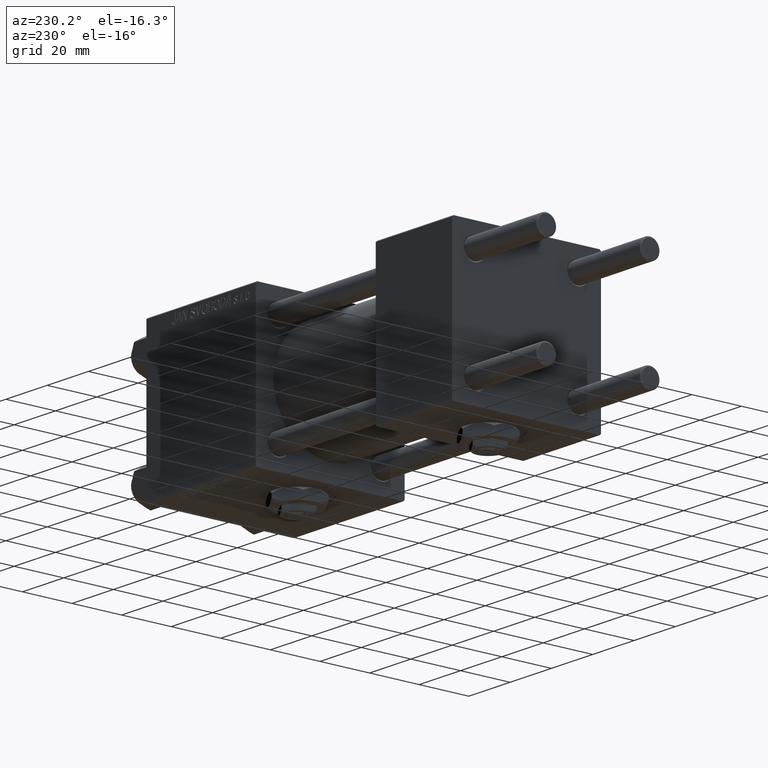
[diagram: clean part render]
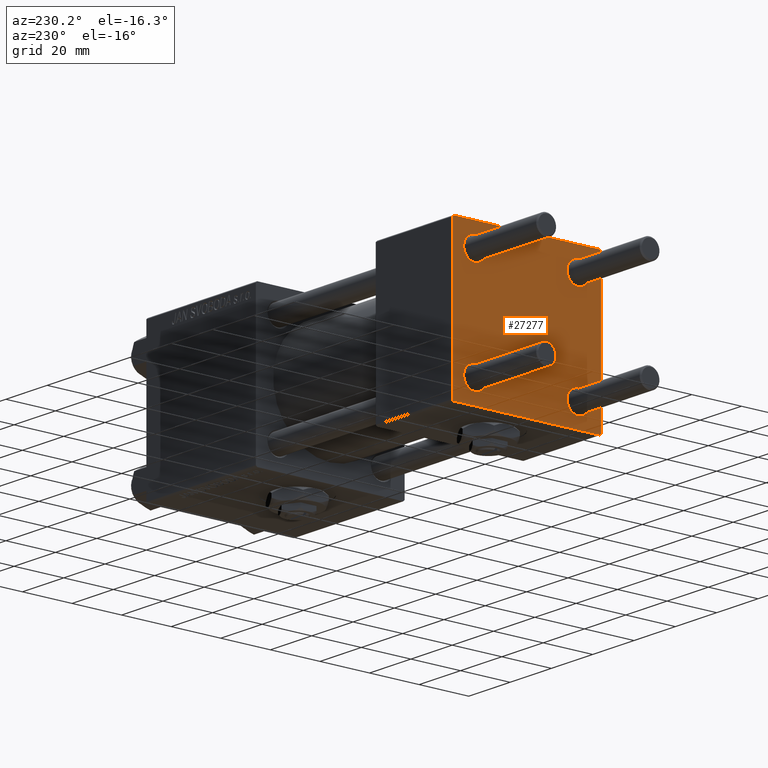
[diagram: same view with one face highlighted and labeled with its STEP entity id]
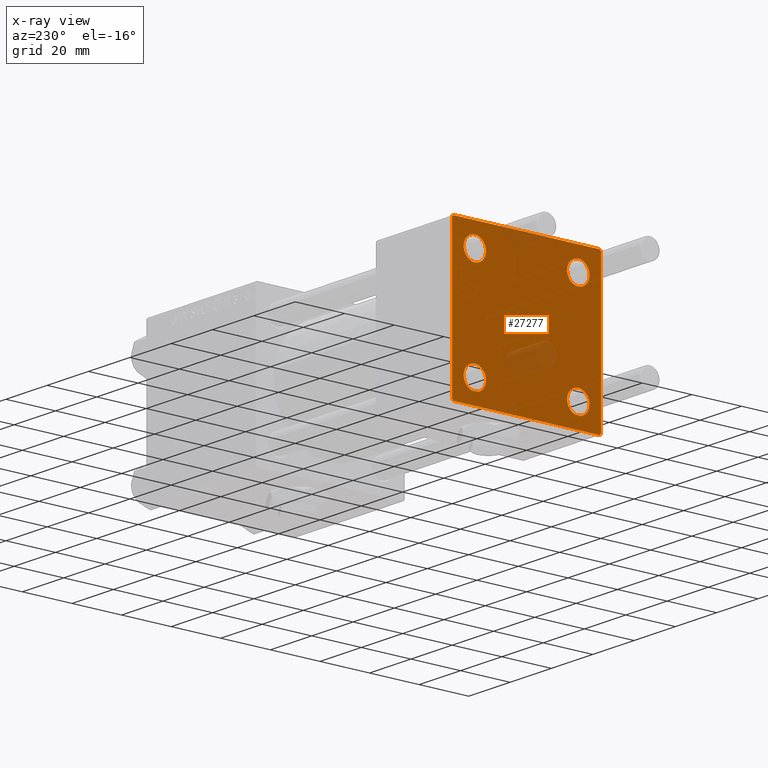
[diagram: x-ray of the same camera — body ghosted, the highlighted face saturated]
A machine part, auxiliary view. The second image highlights one B-rep face of the part: STEP entity #27277.
The next image is the same camera in x-ray: the body ghosted, the highlighted face saturated — about 6% of this face is hidden behind the body in this view.
In plain terms, the highlighted planar face has unit normal (-1, 0, 0).
Its self-contained STEP definition (entity closure, byte-faithful):
#130 = CARTESIAN_POINT ( 'NONE',  ( 0.000000000000000000, 29.99999999999999289, 29.50000000000000000 ) ) ;
#1158 = CIRCLE ( 'NONE', #30516, 4.500000000000017764 ) ;
#1792 = PLANE ( 'NONE',  #25806 ) ;
#1889 = DIRECTION ( 'NONE',  ( 1.000000000000000000, -0.000000000000000000, 0.000000000000000000 ) ) ;
#2029 = VECTOR ( 'NONE', #8825, 1000.000000000000114 ) ;
#2257 = VECTOR ( 'NONE', #6812, 1000.000000000000000 ) ;
#2676 = CARTESIAN_POINT ( 'NONE',  ( 0.000000000000000000, -30.00000000000000000, 29.49999999999999289 ) ) ;
#2818 = CARTESIAN_POINT ( 'NONE',  ( 0.000000000000000000, -29.75000000000001066, -29.75000000000001066 ) ) ;
#3130 = EDGE_CURVE ( 'NONE', #11867, #7755, #35621, .T. ) ;
#3776 = VECTOR ( 'NONE', #13628, 1000.000000000000000 ) ;
#4013 = VERTEX_POINT ( 'NONE', #10673 ) ;
#4149 = EDGE_CURVE ( 'NONE', #7755, #9424, #19234, .T. ) ;
#4629 = DIRECTION ( 'NONE',  ( 0.000000000000000000, 0.000000000000000000, -1.000000000000000000 ) ) ;
#4917 = CARTESIAN_POINT ( 'NONE',  ( 0.000000000000000000, -30.00000000000000000, 29.99999999999999289 ) ) ;
#5449 = EDGE_LOOP ( 'NONE', ( #44151, #40464, #7255, #37819, #44244, #19366, #44660, #33967 ) ) ;
#5552 = EDGE_LOOP ( 'NONE', ( #20144, #47248 ) ) ;
#5651 = EDGE_CURVE ( 'NONE', #28934, #22663, #34666, .T. ) ;
#5818 = DIRECTION ( 'NONE',  ( 0.000000000000000000, 0.000000000000000000, 1.000000000000000000 ) ) ;
#6119 = DIRECTION ( 'NONE',  ( 1.000000000000000000, -0.000000000000000000, 0.000000000000000000 ) ) ;
#6812 = DIRECTION ( 'NONE',  ( 0.000000000000000000, -1.000000000000000000, -1.156482317317871725E-16 ) ) ;
#6940 = EDGE_CURVE ( 'NONE', #14400, #9781, #1158, .T. ) ;
#7185 = EDGE_CURVE ( 'NONE', #50871, #11867, #24587, .T. ) ;
#7255 = ORIENTED_EDGE ( 'NONE', *, *, #13706, .T. ) ;
#7274 = VECTOR ( 'NONE', #20908, 1000.000000000000000 ) ;
#7755 = VERTEX_POINT ( 'NONE', #15632 ) ;
#8166 = CARTESIAN_POINT ( 'NONE',  ( 0.000000000000000000, 20.84999999999999787, -20.85000000000000142 ) ) ;
#8328 = CARTESIAN_POINT ( 'NONE',  ( 0.000000000000000000, -20.84999999999999076, 25.35000000000002274 ) ) ;
#8825 = DIRECTION ( 'NONE',  ( 0.000000000000000000, 0.7071067811865474617, -0.7071067811865474617 ) ) ;
#8853 = LINE ( 'NONE', #4917, #7274 ) ;
#9132 = FACE_BOUND ( 'NONE', #48611, .T. ) ;
#9424 = VERTEX_POINT ( 'NONE', #30956 ) ;
#9781 = VERTEX_POINT ( 'NONE', #37328 ) ;
#9897 = DIRECTION ( 'NONE',  ( 0.000000000000000000, -0.7071067811865474617, 0.7071067811865474617 ) ) ;
#10104 = CARTESIAN_POINT ( 'NONE',  ( 0.000000000000000000, -29.50000000000000000, -30.00000000000000711 ) ) ;
#10158 = LINE ( 'NONE', #2818, #24874 ) ;
#10239 = DIRECTION ( 'NONE',  ( 0.000000000000000000, 0.000000000000000000, 1.000000000000000000 ) ) ;
#10285 = CARTESIAN_POINT ( 'NONE',  ( 0.000000000000000000, -30.00000000000000000, -29.50000000000001776 ) ) ;
#10495 = DIRECTION ( 'NONE',  ( 0.000000000000000000, 0.000000000000000000, 1.000000000000000000 ) ) ;
#10499 = EDGE_CURVE ( 'NONE', #41687, #14804, #35657, .T. ) ;
#10673 = CARTESIAN_POINT ( 'NONE',  ( 0.000000000000000000, -20.84999999999999076, -25.35000000000002274 ) ) ;
#11772 = LINE ( 'NONE', #35655, #2257 ) ;
#11867 = VERTEX_POINT ( 'NONE', #130 ) ;
#13078 = FACE_BOUND ( 'NONE', #36947, .T. ) ;
#13423 = VERTEX_POINT ( 'NONE', #10285 ) ;
#13484 = VERTEX_POINT ( 'NONE', #2676 ) ;
#13628 = DIRECTION ( 'NONE',  ( 0.000000000000000000, -1.000000000000000000, -1.156482317317871725E-16 ) ) ;
#13706 = EDGE_CURVE ( 'NONE', #9424, #21638, #18342, .T. ) ;
#13856 = CARTESIAN_POINT ( 'NONE',  ( 0.000000000000000000, 0.000000000000000000, 0.000000000000000000 ) ) ;
#13988 = ORIENTED_EDGE ( 'NONE', *, *, #21015, .T. ) ;
#14400 = VERTEX_POINT ( 'NONE', #21767 ) ;
#14804 = VERTEX_POINT ( 'NONE', #43233 ) ;
#15091 = CARTESIAN_POINT ( 'NONE',  ( 0.000000000000000000, 20.84999999999999787, -16.34999999999998366 ) ) ;
#15632 = CARTESIAN_POINT ( 'NONE',  ( 0.000000000000000000, 29.99999999999999289, -29.50000000000000000 ) ) ;
#15673 = AXIS2_PLACEMENT_3D ( 'NONE', #33855, #29921, #22042 ) ;
#17010 = FACE_BOUND ( 'NONE', #39382, .T. ) ;
#17016 = CARTESIAN_POINT ( 'NONE',  ( 0.000000000000000000, -20.84999999999999076, 20.85000000000000497 ) ) ;
#17581 = DIRECTION ( 'NONE',  ( 1.000000000000000000, -0.000000000000000000, 0.000000000000000000 ) ) ;
#18342 = LINE ( 'NONE', #49595, #3776 ) ;
#18670 = VECTOR ( 'NONE', #4629, 1000.000000000000000 ) ;
#19234 = LINE ( 'NONE', #26346, #19477 ) ;
#19244 = AXIS2_PLACEMENT_3D ( 'NONE', #48940, #1889, #5818 ) ;
#19366 = ORIENTED_EDGE ( 'NONE', *, *, #37823, .T. ) ;
#19477 = VECTOR ( 'NONE', #50512, 999.9999999999998863 ) ;
#19849 = CIRCLE ( 'NONE', #33257, 4.500000000000017764 ) ;
#20144 = ORIENTED_EDGE ( 'NONE', *, *, #10499, .T. ) ;
#20908 = DIRECTION ( 'NONE',  ( 0.000000000000000000, 0.000000000000000000, -1.000000000000000000 ) ) ;
#20961 = CARTESIAN_POINT ( 'NONE',  ( -0.000000000000000000, -29.74999999999999645, 29.74999999999999645 ) ) ;
#21015 = EDGE_CURVE ( 'NONE', #4013, #45158, #32406, .T. ) ;
#21638 = VERTEX_POINT ( 'NONE', #10104 ) ;
#21767 = CARTESIAN_POINT ( 'NONE',  ( 0.000000000000000000, 20.84999999999999787, 16.34999999999998366 ) ) ;
#22042 = DIRECTION ( 'NONE',  ( 0.000000000000000000, 0.000000000000000000, 1.000000000000000000 ) ) ;
#22663 = VERTEX_POINT ( 'NONE', #15091 ) ;
#24521 = EDGE_CURVE ( 'NONE', #13484, #13423, #8853, .T. ) ;
#24587 = LINE ( 'NONE', #44788, #2029 ) ;
#24594 = EDGE_CURVE ( 'NONE', #21638, #13423, #10158, .T. ) ;
#24596 = VERTEX_POINT ( 'NONE', #25904 ) ;
#24874 = VECTOR ( 'NONE', #9897, 1000.000000000000114 ) ;
#25246 = AXIS2_PLACEMENT_3D ( 'NONE', #17016, #40396, #48793 ) ;
#25564 = EDGE_CURVE ( 'NONE', #9781, #14400, #19849, .T. ) ;
#25697 = EDGE_CURVE ( 'NONE', #50871, #24596, #11772, .T. ) ;
#25806 = AXIS2_PLACEMENT_3D ( 'NONE', #13856, #33014, #33807 ) ;
#25904 = CARTESIAN_POINT ( 'NONE',  ( 0.000000000000000000, -29.49999999999998579, 29.99999999999999289 ) ) ;
#26346 = CARTESIAN_POINT ( 'NONE',  ( 0.000000000000000000, 29.74999999999957723, -29.75000000000040501 ) ) ;
#27277 = ADVANCED_FACE ( 'NONE', ( #41688, #13078, #17010, #9132, #36962 ), #1792, .T. ) ;
#27738 = CARTESIAN_POINT ( 'NONE',  ( 0.000000000000000000, 29.49999999999999289, 30.00000000000000000 ) ) ;
#28934 = VERTEX_POINT ( 'NONE', #33362 ) ;
#29091 = DIRECTION ( 'NONE',  ( 0.000000000000000000, 0.000000000000000000, 1.000000000000000000 ) ) ;
#29919 = DIRECTION ( 'NONE',  ( 1.000000000000000000, -0.000000000000000000, 0.000000000000000000 ) ) ;
#29921 = DIRECTION ( 'NONE',  ( 1.000000000000000000, -0.000000000000000000, 0.000000000000000000 ) ) ;
#30264 = VECTOR ( 'NONE', #41183, 1000.000000000000114 ) ;
#30516 = AXIS2_PLACEMENT_3D ( 'NONE', #37227, #41163, #29091 ) ;
#30637 = AXIS2_PLACEMENT_3D ( 'NONE', #41028, #6119, #34188 ) ;
#30956 = CARTESIAN_POINT ( 'NONE',  ( 0.000000000000000000, 29.49999999999997868, -30.00000000000000000 ) ) ;
#31038 = CIRCLE ( 'NONE', #43617, 4.500000000000017764 ) ;
#31649 = EDGE_CURVE ( 'NONE', #22663, #28934, #41057, .T. ) ;
#32053 = DIRECTION ( 'NONE',  ( 0.000000000000000000, 0.000000000000000000, 1.000000000000000000 ) ) ;
#32406 = CIRCLE ( 'NONE', #15673, 4.500000000000017764 ) ;
#33014 = DIRECTION ( 'NONE',  ( -1.000000000000000000, 0.000000000000000000, -0.000000000000000000 ) ) ;
#33257 = AXIS2_PLACEMENT_3D ( 'NONE', #38053, #29919, #10495 ) ;
#33362 = CARTESIAN_POINT ( 'NONE',  ( 0.000000000000000000, 20.84999999999999787, -25.35000000000001918 ) ) ;
#33807 = DIRECTION ( 'NONE',  ( -0.000000000000000000, 0.000000000000000000, 1.000000000000000000 ) ) ;
#33855 = CARTESIAN_POINT ( 'NONE',  ( 0.000000000000000000, -20.84999999999999076, -20.85000000000000497 ) ) ;
#33889 = ORIENTED_EDGE ( 'NONE', *, *, #47733, .T. ) ;
#33967 = ORIENTED_EDGE ( 'NONE', *, *, #7185, .T. ) ;
#34188 = DIRECTION ( 'NONE',  ( 0.000000000000000000, 0.000000000000000000, 1.000000000000000000 ) ) ;
#34666 = CIRCLE ( 'NONE', #42197, 4.500000000000017764 ) ;
#35221 = DIRECTION ( 'NONE',  ( 1.000000000000000000, -0.000000000000000000, 0.000000000000000000 ) ) ;
#35621 = LINE ( 'NONE', #40592, #18670 ) ;
#35655 = CARTESIAN_POINT ( 'NONE',  ( 0.000000000000000000, 29.99999999999999289, 30.00000000000000000 ) ) ;
#35657 = CIRCLE ( 'NONE', #30637, 4.500000000000017764 ) ;
#36778 = ORIENTED_EDGE ( 'NONE', *, *, #6940, .T. ) ;
#36816 = CARTESIAN_POINT ( 'NONE',  ( 0.000000000000000000, -20.84999999999999076, -16.34999999999998721 ) ) ;
#36947 = EDGE_LOOP ( 'NONE', ( #33889, #13988 ) ) ;
#36962 = FACE_OUTER_BOUND ( 'NONE', #5449, .T. ) ;
#37227 = CARTESIAN_POINT ( 'NONE',  ( 0.000000000000000000, 20.84999999999999787, 20.85000000000000142 ) ) ;
#37328 = CARTESIAN_POINT ( 'NONE',  ( 0.000000000000000000, 20.84999999999999787, 25.35000000000001918 ) ) ;
#37797 = CIRCLE ( 'NONE', #25246, 4.500000000000017764 ) ;
#37819 = ORIENTED_EDGE ( 'NONE', *, *, #24594, .T. ) ;
#37823 = EDGE_CURVE ( 'NONE', #13484, #24596, #44866, .T. ) ;
#38053 = CARTESIAN_POINT ( 'NONE',  ( 0.000000000000000000, 20.84999999999999787, 20.85000000000000142 ) ) ;
#39382 = EDGE_LOOP ( 'NONE', ( #47729, #44671 ) ) ;
#40396 = DIRECTION ( 'NONE',  ( 1.000000000000000000, -0.000000000000000000, 0.000000000000000000 ) ) ;
#40464 = ORIENTED_EDGE ( 'NONE', *, *, #4149, .T. ) ;
#40592 = CARTESIAN_POINT ( 'NONE',  ( 0.000000000000000000, 29.99999999999999289, 30.00000000000000000 ) ) ;
#41028 = CARTESIAN_POINT ( 'NONE',  ( 0.000000000000000000, -20.84999999999999076, 20.85000000000000497 ) ) ;
#41057 = CIRCLE ( 'NONE', #19244, 4.500000000000017764 ) ;
#41163 = DIRECTION ( 'NONE',  ( 1.000000000000000000, -0.000000000000000000, 0.000000000000000000 ) ) ;
#41183 = DIRECTION ( 'NONE',  ( -0.000000000000000000, 0.7071067811865474617, 0.7071067811865474617 ) ) ;
#41687 = VERTEX_POINT ( 'NONE', #8328 ) ;
#41688 = FACE_BOUND ( 'NONE', #5552, .T. ) ;
#41997 = CARTESIAN_POINT ( 'NONE',  ( 0.000000000000000000, -20.84999999999999076, -20.85000000000000497 ) ) ;
#42197 = AXIS2_PLACEMENT_3D ( 'NONE', #8166, #35221, #32053 ) ;
#43233 = CARTESIAN_POINT ( 'NONE',  ( 0.000000000000000000, -20.84999999999999076, 16.34999999999998721 ) ) ;
#43617 = AXIS2_PLACEMENT_3D ( 'NONE', #41997, #17581, #10239 ) ;
#44151 = ORIENTED_EDGE ( 'NONE', *, *, #3130, .T. ) ;
#44244 = ORIENTED_EDGE ( 'NONE', *, *, #24521, .F. ) ;
#44660 = ORIENTED_EDGE ( 'NONE', *, *, #25697, .F. ) ;
#44671 = ORIENTED_EDGE ( 'NONE', *, *, #5651, .T. ) ;
#44788 = CARTESIAN_POINT ( 'NONE',  ( 0.000000000000000000, 29.74999999999999645, 29.74999999999999645 ) ) ;
#44866 = LINE ( 'NONE', #20961, #30264 ) ;
#45158 = VERTEX_POINT ( 'NONE', #36816 ) ;
#45622 = ORIENTED_EDGE ( 'NONE', *, *, #25564, .T. ) ;
#47248 = ORIENTED_EDGE ( 'NONE', *, *, #49801, .T. ) ;
#47729 = ORIENTED_EDGE ( 'NONE', *, *, #31649, .T. ) ;
#47733 = EDGE_CURVE ( 'NONE', #45158, #4013, #31038, .T. ) ;
#48611 = EDGE_LOOP ( 'NONE', ( #45622, #36778 ) ) ;
#48793 = DIRECTION ( 'NONE',  ( 0.000000000000000000, 0.000000000000000000, 1.000000000000000000 ) ) ;
#48940 = CARTESIAN_POINT ( 'NONE',  ( 0.000000000000000000, 20.84999999999999787, -20.85000000000000142 ) ) ;
#49595 = CARTESIAN_POINT ( 'NONE',  ( 0.000000000000000000, 29.99999999999999289, -30.00000000000000000 ) ) ;
#49801 = EDGE_CURVE ( 'NONE', #14804, #41687, #37797, .T. ) ;
#50512 = DIRECTION ( 'NONE',  ( -0.000000000000000000, -0.7071067811865574537, -0.7071067811865376918 ) ) ;
#50871 = VERTEX_POINT ( 'NONE', #27738 ) ;